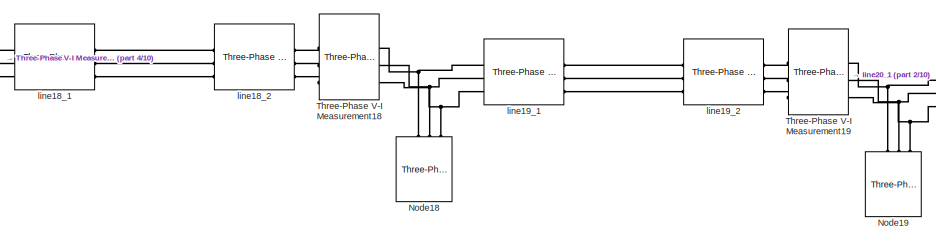
[diagram: root canvas - part 1/10, top left region]
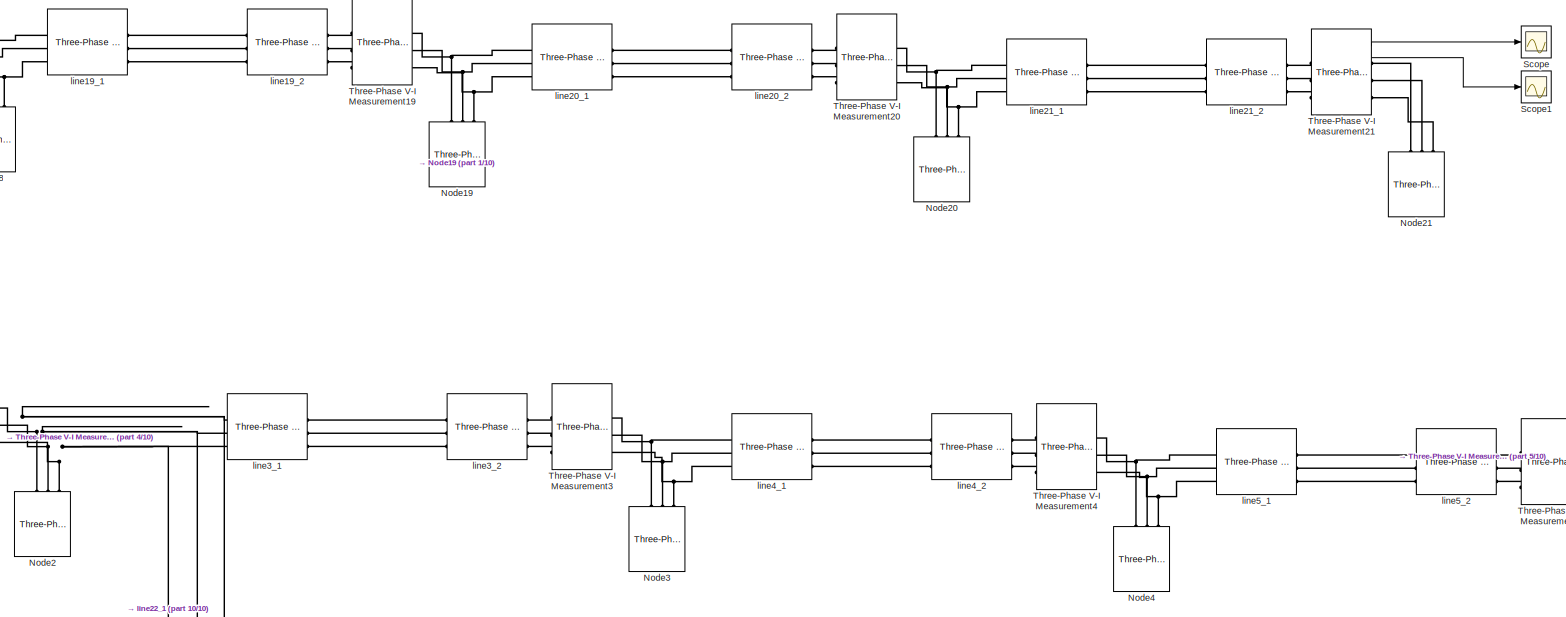
[diagram: root canvas - part 2/10, top left region]
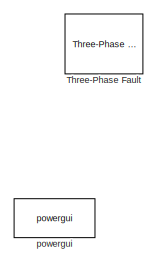
[diagram: root canvas - part 3/10, top left region]
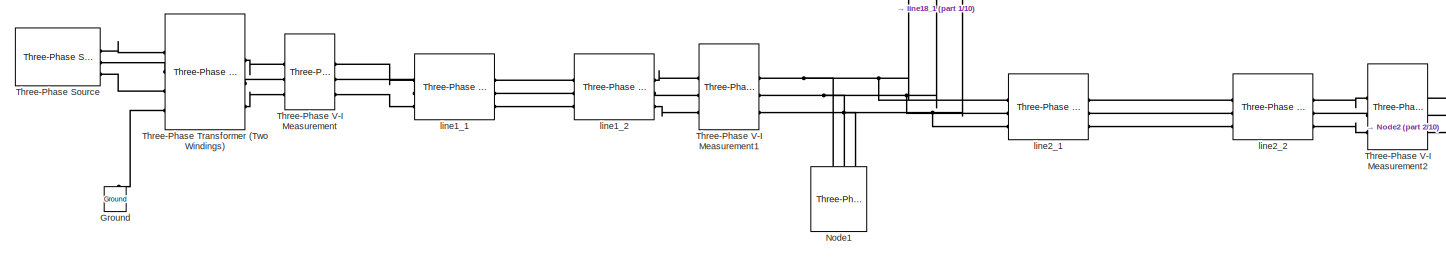
[diagram: root canvas - part 4/10, middle left region]
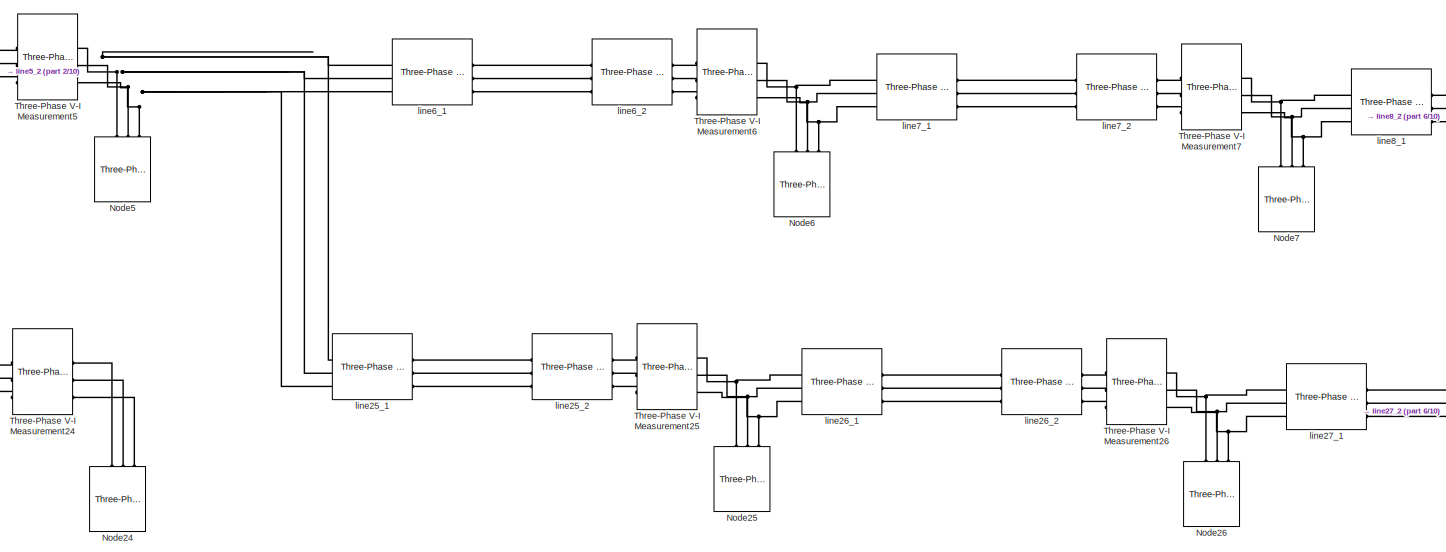
[diagram: root canvas - part 5/10, central region]
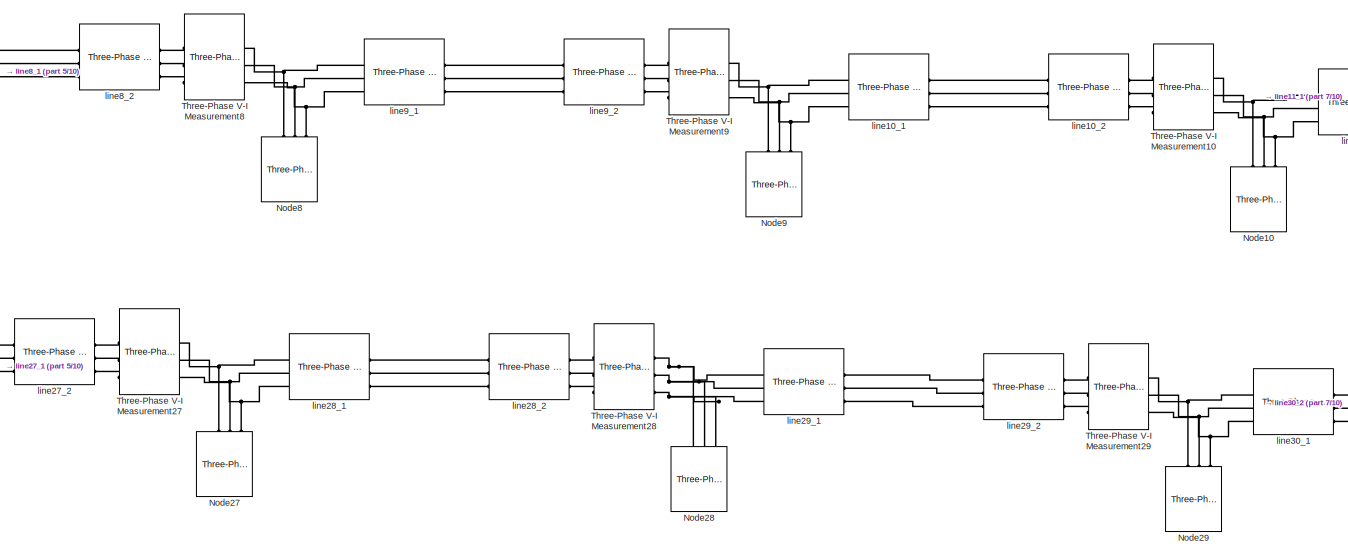
[diagram: root canvas - part 6/10, bottom center region]
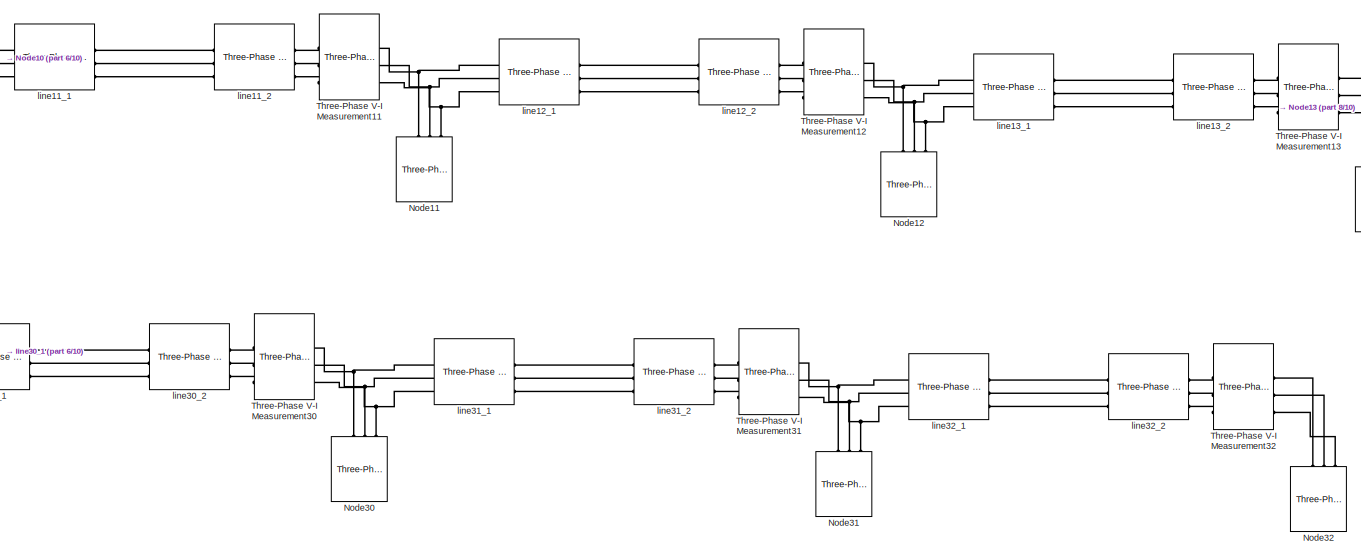
[diagram: root canvas - part 7/10, bottom right region]
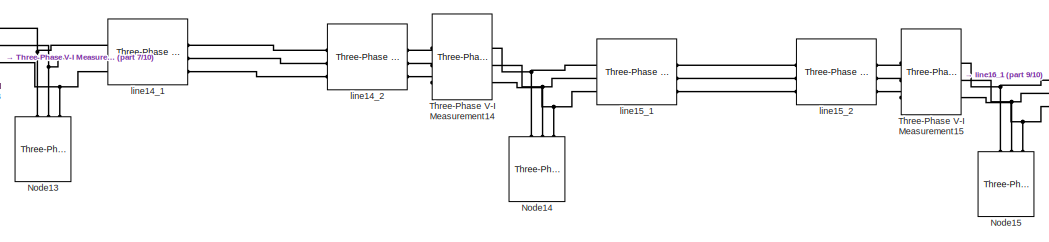
[diagram: root canvas - part 8/10, middle right region]
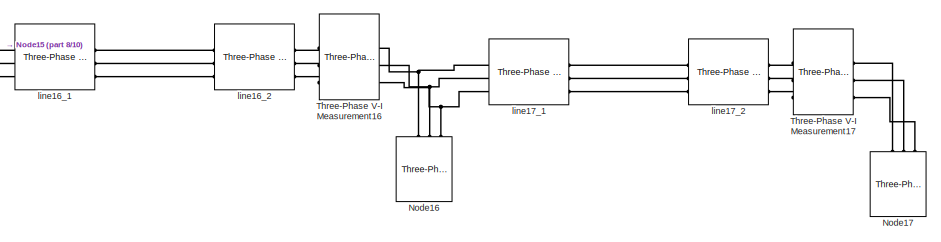
[diagram: root canvas - part 9/10, bottom right region]
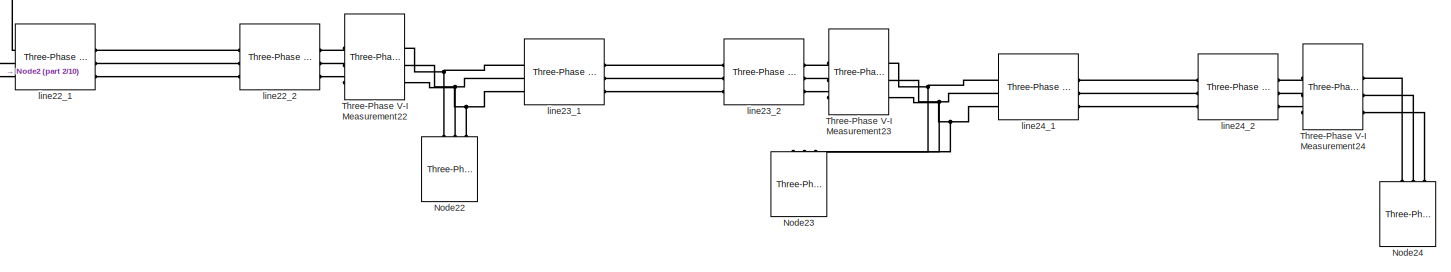
[diagram: root canvas - part 10/10, bottom left region]
MODEL slx_a743ca251527
KIND model
CONFIG AbsTol = auto
CONFIG EnableMultiTasking = off
CONFIG FixedStep = auto
CONFIG MaxStep = auto
CONFIG MinStep = auto
CONFIG RelTol = 1e-3
CONFIG SampleTimeConstraint = Unconstrained
CONFIG SolverName = VariableStepAuto
CONFIG StartTime = 0.0
CONFIG StopTime = 0.04
BLOCK [Reference] Ground  REF=spsGroundLib/Ground
  LibrarySourceBlock = sps_lib/Utilities/Ground
  NameLocation = right
  SourceBlock = spsGroundLib/Ground
  SourceType = Ground
BLOCK [Reference] Node1  REF=spsThreePhaseSeriesRLCLoadLib/Three-Phase
Series RLC Load
  AttributesFormatString = \n
  LibrarySourceBlock = sps_lib/Passives/Three-Phase\nSeries RLC Load
  SourceBlock = spsThreePhaseSeriesRLCLoadLib/Three-Phase\nSeries RLC Load
  SourceType = Three-Phase Series RLC Load
BLOCK [Reference] Node10  REF=spsThreePhaseSeriesRLCLoadLib/Three-Phase
Series RLC Load
  AttributesFormatString = \n
  LibrarySourceBlock = sps_lib/Passives/Three-Phase\nSeries RLC Load
  SourceBlock = spsThreePhaseSeriesRLCLoadLib/Three-Phase\nSeries RLC Load
  SourceType = Three-Phase Series RLC Load
BLOCK [Reference] Node11  REF=spsThreePhaseSeriesRLCLoadLib/Three-Phase
Series RLC Load
  AttributesFormatString = \n
  LibrarySourceBlock = sps_lib/Passives/Three-Phase\nSeries RLC Load
  SourceBlock = spsThreePhaseSeriesRLCLoadLib/Three-Phase\nSeries RLC Load
  SourceType = Three-Phase Series RLC Load
BLOCK [Reference] Node12  REF=spsThreePhaseSeriesRLCLoadLib/Three-Phase
Series RLC Load
  AttributesFormatString = \n
  LibrarySourceBlock = sps_lib/Passives/Three-Phase\nSeries RLC Load
  SourceBlock = spsThreePhaseSeriesRLCLoadLib/Three-Phase\nSeries RLC Load
  SourceType = Three-Phase Series RLC Load
BLOCK [Reference] Node13  REF=spsThreePhaseSeriesRLCLoadLib/Three-Phase
Series RLC Load
  AttributesFormatString = \n
  LibrarySourceBlock = sps_lib/Passives/Three-Phase\nSeries RLC Load
  SourceBlock = spsThreePhaseSeriesRLCLoadLib/Three-Phase\nSeries RLC Load
  SourceType = Three-Phase Series RLC Load
BLOCK [Reference] Node14  REF=spsThreePhaseSeriesRLCLoadLib/Three-Phase
Series RLC Load
  AttributesFormatString = \n
  LibrarySourceBlock = sps_lib/Passives/Three-Phase\nSeries RLC Load
  SourceBlock = spsThreePhaseSeriesRLCLoadLib/Three-Phase\nSeries RLC Load
  SourceType = Three-Phase Series RLC Load
BLOCK [Reference] Node15  REF=spsThreePhaseSeriesRLCLoadLib/Three-Phase
Series RLC Load
  AttributesFormatString = \n
  LibrarySourceBlock = sps_lib/Passives/Three-Phase\nSeries RLC Load
  SourceBlock = spsThreePhaseSeriesRLCLoadLib/Three-Phase\nSeries RLC Load
  SourceType = Three-Phase Series RLC Load
BLOCK [Reference] Node16  REF=spsThreePhaseSeriesRLCLoadLib/Three-Phase
Series RLC Load
  AttributesFormatString = \n
  LibrarySourceBlock = sps_lib/Passives/Three-Phase\nSeries RLC Load
  SourceBlock = spsThreePhaseSeriesRLCLoadLib/Three-Phase\nSeries RLC Load
  SourceType = Three-Phase Series RLC Load
BLOCK [Reference] Node17  REF=spsThreePhaseSeriesRLCLoadLib/Three-Phase
Series RLC Load
  AttributesFormatString = \n
  LibrarySourceBlock = sps_lib/Passives/Three-Phase\nSeries RLC Load
  SourceBlock = spsThreePhaseSeriesRLCLoadLib/Three-Phase\nSeries RLC Load
  SourceType = Three-Phase Series RLC Load
BLOCK [Reference] Node18  REF=spsThreePhaseSeriesRLCLoadLib/Three-Phase
Series RLC Load
  AttributesFormatString = \n
  LibrarySourceBlock = sps_lib/Passives/Three-Phase\nSeries RLC Load
  SourceBlock = spsThreePhaseSeriesRLCLoadLib/Three-Phase\nSeries RLC Load
  SourceType = Three-Phase Series RLC Load
BLOCK [Reference] Node19  REF=spsThreePhaseSeriesRLCLoadLib/Three-Phase
Series RLC Load
  AttributesFormatString = \n
  LibrarySourceBlock = sps_lib/Passives/Three-Phase\nSeries RLC Load
  SourceBlock = spsThreePhaseSeriesRLCLoadLib/Three-Phase\nSeries RLC Load
  SourceType = Three-Phase Series RLC Load
BLOCK [Reference] Node2  REF=spsThreePhaseSeriesRLCLoadLib/Three-Phase
Series RLC Load
  AttributesFormatString = \n
  LibrarySourceBlock = sps_lib/Passives/Three-Phase\nSeries RLC Load
  SourceBlock = spsThreePhaseSeriesRLCLoadLib/Three-Phase\nSeries RLC Load
  SourceType = Three-Phase Series RLC Load
BLOCK [Reference] Node20  REF=spsThreePhaseSeriesRLCLoadLib/Three-Phase
Series RLC Load
  AttributesFormatString = \n
  LibrarySourceBlock = sps_lib/Passives/Three-Phase\nSeries RLC Load
  SourceBlock = spsThreePhaseSeriesRLCLoadLib/Three-Phase\nSeries RLC Load
  SourceType = Three-Phase Series RLC Load
BLOCK [Reference] Node21  REF=spsThreePhaseSeriesRLCLoadLib/Three-Phase
Series RLC Load
  AttributesFormatString = \n
  LibrarySourceBlock = sps_lib/Passives/Three-Phase\nSeries RLC Load
  SourceBlock = spsThreePhaseSeriesRLCLoadLib/Three-Phase\nSeries RLC Load
  SourceType = Three-Phase Series RLC Load
BLOCK [Reference] Node22  REF=spsThreePhaseSeriesRLCLoadLib/Three-Phase
Series RLC Load
  AttributesFormatString = \n
  LibrarySourceBlock = sps_lib/Passives/Three-Phase\nSeries RLC Load
  SourceBlock = spsThreePhaseSeriesRLCLoadLib/Three-Phase\nSeries RLC Load
  SourceType = Three-Phase Series RLC Load
BLOCK [Reference] Node23  REF=spsThreePhaseSeriesRLCLoadLib/Three-Phase
Series RLC Load
  AttributesFormatString = \n
  LibrarySourceBlock = sps_lib/Passives/Three-Phase\nSeries RLC Load
  SourceBlock = spsThreePhaseSeriesRLCLoadLib/Three-Phase\nSeries RLC Load
  SourceType = Three-Phase Series RLC Load
BLOCK [Reference] Node24  REF=spsThreePhaseSeriesRLCLoadLib/Three-Phase
Series RLC Load
  AttributesFormatString = \n
  LibrarySourceBlock = sps_lib/Passives/Three-Phase\nSeries RLC Load
  SourceBlock = spsThreePhaseSeriesRLCLoadLib/Three-Phase\nSeries RLC Load
  SourceType = Three-Phase Series RLC Load
BLOCK [Reference] Node25  REF=spsThreePhaseSeriesRLCLoadLib/Three-Phase
Series RLC Load
  AttributesFormatString = \n
  LibrarySourceBlock = sps_lib/Passives/Three-Phase\nSeries RLC Load
  SourceBlock = spsThreePhaseSeriesRLCLoadLib/Three-Phase\nSeries RLC Load
  SourceType = Three-Phase Series RLC Load
BLOCK [Reference] Node26  REF=spsThreePhaseSeriesRLCLoadLib/Three-Phase
Series RLC Load
  AttributesFormatString = \n
  LibrarySourceBlock = sps_lib/Passives/Three-Phase\nSeries RLC Load
  SourceBlock = spsThreePhaseSeriesRLCLoadLib/Three-Phase\nSeries RLC Load
  SourceType = Three-Phase Series RLC Load
BLOCK [Reference] Node27  REF=spsThreePhaseSeriesRLCLoadLib/Three-Phase
Series RLC Load
  AttributesFormatString = \n
  LibrarySourceBlock = sps_lib/Passives/Three-Phase\nSeries RLC Load
  SourceBlock = spsThreePhaseSeriesRLCLoadLib/Three-Phase\nSeries RLC Load
  SourceType = Three-Phase Series RLC Load
BLOCK [Reference] Node28  REF=spsThreePhaseSeriesRLCLoadLib/Three-Phase
Series RLC Load
  AttributesFormatString = \n
  LibrarySourceBlock = sps_lib/Passives/Three-Phase\nSeries RLC Load
  SourceBlock = spsThreePhaseSeriesRLCLoadLib/Three-Phase\nSeries RLC Load
  SourceType = Three-Phase Series RLC Load
BLOCK [Reference] Node29  REF=spsThreePhaseSeriesRLCLoadLib/Three-Phase
Series RLC Load
  AttributesFormatString = \n
  LibrarySourceBlock = sps_lib/Passives/Three-Phase\nSeries RLC Load
  SourceBlock = spsThreePhaseSeriesRLCLoadLib/Three-Phase\nSeries RLC Load
  SourceType = Three-Phase Series RLC Load
BLOCK [Reference] Node3  REF=spsThreePhaseSeriesRLCLoadLib/Three-Phase
Series RLC Load
  AttributesFormatString = \n
  LibrarySourceBlock = sps_lib/Passives/Three-Phase\nSeries RLC Load
  SourceBlock = spsThreePhaseSeriesRLCLoadLib/Three-Phase\nSeries RLC Load
  SourceType = Three-Phase Series RLC Load
BLOCK [Reference] Node30  REF=spsThreePhaseSeriesRLCLoadLib/Three-Phase
Series RLC Load
  AttributesFormatString = \n
  LibrarySourceBlock = sps_lib/Passives/Three-Phase\nSeries RLC Load
  SourceBlock = spsThreePhaseSeriesRLCLoadLib/Three-Phase\nSeries RLC Load
  SourceType = Three-Phase Series RLC Load
BLOCK [Reference] Node31  REF=spsThreePhaseSeriesRLCLoadLib/Three-Phase
Series RLC Load
  AttributesFormatString = \n
  LibrarySourceBlock = sps_lib/Passives/Three-Phase\nSeries RLC Load
  SourceBlock = spsThreePhaseSeriesRLCLoadLib/Three-Phase\nSeries RLC Load
  SourceType = Three-Phase Series RLC Load
BLOCK [Reference] Node32  REF=spsThreePhaseSeriesRLCLoadLib/Three-Phase
Series RLC Load
  AttributesFormatString = \n
  LibrarySourceBlock = sps_lib/Passives/Three-Phase\nSeries RLC Load
  SourceBlock = spsThreePhaseSeriesRLCLoadLib/Three-Phase\nSeries RLC Load
  SourceType = Three-Phase Series RLC Load
BLOCK [Reference] Node4  REF=spsThreePhaseSeriesRLCLoadLib/Three-Phase
Series RLC Load
  AttributesFormatString = \n
  LibrarySourceBlock = sps_lib/Passives/Three-Phase\nSeries RLC Load
  SourceBlock = spsThreePhaseSeriesRLCLoadLib/Three-Phase\nSeries RLC Load
  SourceType = Three-Phase Series RLC Load
BLOCK [Reference] Node5  REF=spsThreePhaseSeriesRLCLoadLib/Three-Phase
Series RLC Load
  AttributesFormatString = \n
  LibrarySourceBlock = sps_lib/Passives/Three-Phase\nSeries RLC Load
  SourceBlock = spsThreePhaseSeriesRLCLoadLib/Three-Phase\nSeries RLC Load
  SourceType = Three-Phase Series RLC Load
BLOCK [Reference] Node6  REF=spsThreePhaseSeriesRLCLoadLib/Three-Phase
Series RLC Load
  AttributesFormatString = \n
  LibrarySourceBlock = sps_lib/Passives/Three-Phase\nSeries RLC Load
  SourceBlock = spsThreePhaseSeriesRLCLoadLib/Three-Phase\nSeries RLC Load
  SourceType = Three-Phase Series RLC Load
BLOCK [Reference] Node7  REF=spsThreePhaseSeriesRLCLoadLib/Three-Phase
Series RLC Load
  AttributesFormatString = \n
  LibrarySourceBlock = sps_lib/Passives/Three-Phase\nSeries RLC Load
  SourceBlock = spsThreePhaseSeriesRLCLoadLib/Three-Phase\nSeries RLC Load
  SourceType = Three-Phase Series RLC Load
BLOCK [Reference] Node8  REF=spsThreePhaseSeriesRLCLoadLib/Three-Phase
Series RLC Load
  AttributesFormatString = \n
  LibrarySourceBlock = sps_lib/Passives/Three-Phase\nSeries RLC Load
  SourceBlock = spsThreePhaseSeriesRLCLoadLib/Three-Phase\nSeries RLC Load
  SourceType = Three-Phase Series RLC Load
BLOCK [Reference] Node9  REF=spsThreePhaseSeriesRLCLoadLib/Three-Phase
Series RLC Load
  AttributesFormatString = \n
  LibrarySourceBlock = sps_lib/Passives/Three-Phase\nSeries RLC Load
  SourceBlock = spsThreePhaseSeriesRLCLoadLib/Three-Phase\nSeries RLC Load
  SourceType = Three-Phase Series RLC Load
BLOCK [Scope] Scope
  Floating = off
  NumInputPorts = 1
  ScopeSpecificationString = Simulink.scopes.TimeScopeBlockCfg('CurrentConfiguration', extmgr.ConfigurationSet(extmgr.Configuration('Core','General UI',true),extmgr.Configuration('Core','Source UI',true),extmgr.Configuration('Sources','WiredSimulink',true),extmgr.Configuration('Visuals','Time Domain',true,'SerializedDisplays',{struct('MinYLimReal','-9272.10857','MaxYLimReal','9272.10856','YLabelReal','','MinYLimMag','  0.0000...<+1551ch>
BLOCK [Scope] Scope1
  Floating = off
  NumInputPorts = 1
  ScopeSpecificationString = Simulink.scopes.TimeScopeBlockCfg('CurrentConfiguration', extmgr.ConfigurationSet(extmgr.Configuration('Core','General UI',true),extmgr.Configuration('Core','Source UI',true),extmgr.Configuration('Sources','WiredSimulink',true,'DataLoggingVariableName','ScopeData1'),extmgr.Configuration('Visuals','Time Domain',true,'SerializedDisplays',{struct('MinYLimReal','-132.71123','MaxYLimReal','132.71123','...<+1582ch>
BLOCK [Reference] Three-Phase Fault  REF=spsThreePhaseFaultLib/Three-Phase Fault
  LibrarySourceBlock = sps_lib/Power Grid Elements/Three-Phase Fault
  NameLocation = left
  SourceBlock = spsThreePhaseFaultLib/Three-Phase Fault
  SourceType = Three-Phase Fault
BLOCK [Reference] Three-Phase Source  REF=spsThreePhaseSourceLib/Three-Phase Source
  LibrarySourceBlock = sps_lib/Sources/Three-Phase Source
  SourceBlock = spsThreePhaseSourceLib/Three-Phase Source
  SourceType = Three-Phase Source
BLOCK [Reference] Three-Phase Transformer (Two Windings)  REF=spsThreePhaseTransformerTwoWindingsLib/Three-Phase
Transformer
(Two Windings)
  LibrarySourceBlock = sps_lib/Power Grid Elements/Three-Phase\nTransformer\n(Two Windings)
  SourceBlock = spsThreePhaseTransformerTwoWindingsLib/Three-Phase\nTransformer\n(Two Windings)
  SourceType = Three-Phase Transformer (Two Windings)
BLOCK [Reference] Three-Phase V-I Measurement  REF=spsThreePhaseVIMeasurementLib/Three-Phase
V-I Measurement
  LibrarySourceBlock = sps_lib/Sensors and Measurements/Three-Phase\nV-I Measurement
  SourceBlock = spsThreePhaseVIMeasurementLib/Three-Phase\nV-I Measurement
  SourceType = Three-Phase VI Measurement
BLOCK [Reference] Three-Phase V-I Measurement1  REF=spsThreePhaseVIMeasurementLib/Three-Phase
V-I Measurement
  LibrarySourceBlock = sps_lib/Sensors and Measurements/Three-Phase\nV-I Measurement
  SourceBlock = spsThreePhaseVIMeasurementLib/Three-Phase\nV-I Measurement
  SourceType = Three-Phase VI Measurement
BLOCK [Reference] Three-Phase V-I Measurement10  REF=spsThreePhaseVIMeasurementLib/Three-Phase
V-I Measurement
  LibrarySourceBlock = sps_lib/Sensors and Measurements/Three-Phase\nV-I Measurement
  SourceBlock = spsThreePhaseVIMeasurementLib/Three-Phase\nV-I Measurement
  SourceType = Three-Phase VI Measurement
BLOCK [Reference] Three-Phase V-I Measurement11  REF=spsThreePhaseVIMeasurementLib/Three-Phase
V-I Measurement
  LibrarySourceBlock = sps_lib/Sensors and Measurements/Three-Phase\nV-I Measurement
  SourceBlock = spsThreePhaseVIMeasurementLib/Three-Phase\nV-I Measurement
  SourceType = Three-Phase VI Measurement
BLOCK [Reference] Three-Phase V-I Measurement12  REF=spsThreePhaseVIMeasurementLib/Three-Phase
V-I Measurement
  LibrarySourceBlock = sps_lib/Sensors and Measurements/Three-Phase\nV-I Measurement
  SourceBlock = spsThreePhaseVIMeasurementLib/Three-Phase\nV-I Measurement
  SourceType = Three-Phase VI Measurement
BLOCK [Reference] Three-Phase V-I Measurement13  REF=spsThreePhaseVIMeasurementLib/Three-Phase
V-I Measurement
  LibrarySourceBlock = sps_lib/Sensors and Measurements/Three-Phase\nV-I Measurement
  SourceBlock = spsThreePhaseVIMeasurementLib/Three-Phase\nV-I Measurement
  SourceType = Three-Phase VI Measurement
BLOCK [Reference] Three-Phase V-I Measurement14  REF=spsThreePhaseVIMeasurementLib/Three-Phase
V-I Measurement
  LibrarySourceBlock = sps_lib/Sensors and Measurements/Three-Phase\nV-I Measurement
  SourceBlock = spsThreePhaseVIMeasurementLib/Three-Phase\nV-I Measurement
  SourceType = Three-Phase VI Measurement
BLOCK [Reference] Three-Phase V-I Measurement15  REF=spsThreePhaseVIMeasurementLib/Three-Phase
V-I Measurement
  LibrarySourceBlock = sps_lib/Sensors and Measurements/Three-Phase\nV-I Measurement
  SourceBlock = spsThreePhaseVIMeasurementLib/Three-Phase\nV-I Measurement
  SourceType = Three-Phase VI Measurement
BLOCK [Reference] Three-Phase V-I Measurement16  REF=spsThreePhaseVIMeasurementLib/Three-Phase
V-I Measurement
  LibrarySourceBlock = sps_lib/Sensors and Measurements/Three-Phase\nV-I Measurement
  SourceBlock = spsThreePhaseVIMeasurementLib/Three-Phase\nV-I Measurement
  SourceType = Three-Phase VI Measurement
BLOCK [Reference] Three-Phase V-I Measurement17  REF=spsThreePhaseVIMeasurementLib/Three-Phase
V-I Measurement
  LibrarySourceBlock = sps_lib/Sensors and Measurements/Three-Phase\nV-I Measurement
  SourceBlock = spsThreePhaseVIMeasurementLib/Three-Phase\nV-I Measurement
  SourceType = Three-Phase VI Measurement
BLOCK [Reference] Three-Phase V-I Measurement18  REF=spsThreePhaseVIMeasurementLib/Three-Phase
V-I Measurement
  LibrarySourceBlock = sps_lib/Sensors and Measurements/Three-Phase\nV-I Measurement
  SourceBlock = spsThreePhaseVIMeasurementLib/Three-Phase\nV-I Measurement
  SourceType = Three-Phase VI Measurement
BLOCK [Reference] Three-Phase V-I Measurement19  REF=spsThreePhaseVIMeasurementLib/Three-Phase
V-I Measurement
  LibrarySourceBlock = sps_lib/Sensors and Measurements/Three-Phase\nV-I Measurement
  SourceBlock = spsThreePhaseVIMeasurementLib/Three-Phase\nV-I Measurement
  SourceType = Three-Phase VI Measurement
BLOCK [Reference] Three-Phase V-I Measurement2  REF=spsThreePhaseVIMeasurementLib/Three-Phase
V-I Measurement
  LibrarySourceBlock = sps_lib/Sensors and Measurements/Three-Phase\nV-I Measurement
  SourceBlock = spsThreePhaseVIMeasurementLib/Three-Phase\nV-I Measurement
  SourceType = Three-Phase VI Measurement
BLOCK [Reference] Three-Phase V-I Measurement20  REF=spsThreePhaseVIMeasurementLib/Three-Phase
V-I Measurement
  LibrarySourceBlock = sps_lib/Sensors and Measurements/Three-Phase\nV-I Measurement
  SourceBlock = spsThreePhaseVIMeasurementLib/Three-Phase\nV-I Measurement
  SourceType = Three-Phase VI Measurement
BLOCK [Reference] Three-Phase V-I Measurement21  REF=spsThreePhaseVIMeasurementLib/Three-Phase
V-I Measurement
  LibrarySourceBlock = sps_lib/Sensors and Measurements/Three-Phase\nV-I Measurement
  SourceBlock = spsThreePhaseVIMeasurementLib/Three-Phase\nV-I Measurement
  SourceType = Three-Phase VI Measurement
BLOCK [Reference] Three-Phase V-I Measurement22  REF=spsThreePhaseVIMeasurementLib/Three-Phase
V-I Measurement
  LibrarySourceBlock = sps_lib/Sensors and Measurements/Three-Phase\nV-I Measurement
  SourceBlock = spsThreePhaseVIMeasurementLib/Three-Phase\nV-I Measurement
  SourceType = Three-Phase VI Measurement
BLOCK [Reference] Three-Phase V-I Measurement23  REF=spsThreePhaseVIMeasurementLib/Three-Phase
V-I Measurement
  LibrarySourceBlock = sps_lib/Sensors and Measurements/Three-Phase\nV-I Measurement
  SourceBlock = spsThreePhaseVIMeasurementLib/Three-Phase\nV-I Measurement
  SourceType = Three-Phase VI Measurement
BLOCK [Reference] Three-Phase V-I Measurement24  REF=spsThreePhaseVIMeasurementLib/Three-Phase
V-I Measurement
  LibrarySourceBlock = sps_lib/Sensors and Measurements/Three-Phase\nV-I Measurement
  SourceBlock = spsThreePhaseVIMeasurementLib/Three-Phase\nV-I Measurement
  SourceType = Three-Phase VI Measurement
BLOCK [Reference] Three-Phase V-I Measurement25  REF=spsThreePhaseVIMeasurementLib/Three-Phase
V-I Measurement
  LibrarySourceBlock = sps_lib/Sensors and Measurements/Three-Phase\nV-I Measurement
  SourceBlock = spsThreePhaseVIMeasurementLib/Three-Phase\nV-I Measurement
  SourceType = Three-Phase VI Measurement
BLOCK [Reference] Three-Phase V-I Measurement26  REF=spsThreePhaseVIMeasurementLib/Three-Phase
V-I Measurement
  LibrarySourceBlock = sps_lib/Sensors and Measurements/Three-Phase\nV-I Measurement
  SourceBlock = spsThreePhaseVIMeasurementLib/Three-Phase\nV-I Measurement
  SourceType = Three-Phase VI Measurement
BLOCK [Reference] Three-Phase V-I Measurement27  REF=spsThreePhaseVIMeasurementLib/Three-Phase
V-I Measurement
  LibrarySourceBlock = sps_lib/Sensors and Measurements/Three-Phase\nV-I Measurement
  SourceBlock = spsThreePhaseVIMeasurementLib/Three-Phase\nV-I Measurement
  SourceType = Three-Phase VI Measurement
BLOCK [Reference] Three-Phase V-I Measurement28  REF=spsThreePhaseVIMeasurementLib/Three-Phase
V-I Measurement
  LibrarySourceBlock = sps_lib/Sensors and Measurements/Three-Phase\nV-I Measurement
  SourceBlock = spsThreePhaseVIMeasurementLib/Three-Phase\nV-I Measurement
  SourceType = Three-Phase VI Measurement
BLOCK [Reference] Three-Phase V-I Measurement29  REF=spsThreePhaseVIMeasurementLib/Three-Phase
V-I Measurement
  LibrarySourceBlock = sps_lib/Sensors and Measurements/Three-Phase\nV-I Measurement
  SourceBlock = spsThreePhaseVIMeasurementLib/Three-Phase\nV-I Measurement
  SourceType = Three-Phase VI Measurement
BLOCK [Reference] Three-Phase V-I Measurement3  REF=spsThreePhaseVIMeasurementLib/Three-Phase
V-I Measurement
  LibrarySourceBlock = sps_lib/Sensors and Measurements/Three-Phase\nV-I Measurement
  SourceBlock = spsThreePhaseVIMeasurementLib/Three-Phase\nV-I Measurement
  SourceType = Three-Phase VI Measurement
BLOCK [Reference] Three-Phase V-I Measurement30  REF=spsThreePhaseVIMeasurementLib/Three-Phase
V-I Measurement
  LibrarySourceBlock = sps_lib/Sensors and Measurements/Three-Phase\nV-I Measurement
  SourceBlock = spsThreePhaseVIMeasurementLib/Three-Phase\nV-I Measurement
  SourceType = Three-Phase VI Measurement
BLOCK [Reference] Three-Phase V-I Measurement31  REF=spsThreePhaseVIMeasurementLib/Three-Phase
V-I Measurement
  LibrarySourceBlock = sps_lib/Sensors and Measurements/Three-Phase\nV-I Measurement
  SourceBlock = spsThreePhaseVIMeasurementLib/Three-Phase\nV-I Measurement
  SourceType = Three-Phase VI Measurement
BLOCK [Reference] Three-Phase V-I Measurement32  REF=spsThreePhaseVIMeasurementLib/Three-Phase
V-I Measurement
  LibrarySourceBlock = sps_lib/Sensors and Measurements/Three-Phase\nV-I Measurement
  SourceBlock = spsThreePhaseVIMeasurementLib/Three-Phase\nV-I Measurement
  SourceType = Three-Phase VI Measurement
BLOCK [Reference] Three-Phase V-I Measurement4  REF=spsThreePhaseVIMeasurementLib/Three-Phase
V-I Measurement
  LibrarySourceBlock = sps_lib/Sensors and Measurements/Three-Phase\nV-I Measurement
  SourceBlock = spsThreePhaseVIMeasurementLib/Three-Phase\nV-I Measurement
  SourceType = Three-Phase VI Measurement
BLOCK [Reference] Three-Phase V-I Measurement5  REF=spsThreePhaseVIMeasurementLib/Three-Phase
V-I Measurement
  LibrarySourceBlock = sps_lib/Sensors and Measurements/Three-Phase\nV-I Measurement
  SourceBlock = spsThreePhaseVIMeasurementLib/Three-Phase\nV-I Measurement
  SourceType = Three-Phase VI Measurement
BLOCK [Reference] Three-Phase V-I Measurement6  REF=spsThreePhaseVIMeasurementLib/Three-Phase
V-I Measurement
  LibrarySourceBlock = sps_lib/Sensors and Measurements/Three-Phase\nV-I Measurement
  SourceBlock = spsThreePhaseVIMeasurementLib/Three-Phase\nV-I Measurement
  SourceType = Three-Phase VI Measurement
BLOCK [Reference] Three-Phase V-I Measurement7  REF=spsThreePhaseVIMeasurementLib/Three-Phase
V-I Measurement
  LibrarySourceBlock = sps_lib/Sensors and Measurements/Three-Phase\nV-I Measurement
  SourceBlock = spsThreePhaseVIMeasurementLib/Three-Phase\nV-I Measurement
  SourceType = Three-Phase VI Measurement
BLOCK [Reference] Three-Phase V-I Measurement8  REF=spsThreePhaseVIMeasurementLib/Three-Phase
V-I Measurement
  LibrarySourceBlock = sps_lib/Sensors and Measurements/Three-Phase\nV-I Measurement
  SourceBlock = spsThreePhaseVIMeasurementLib/Three-Phase\nV-I Measurement
  SourceType = Three-Phase VI Measurement
BLOCK [Reference] Three-Phase V-I Measurement9  REF=spsThreePhaseVIMeasurementLib/Three-Phase
V-I Measurement
  LibrarySourceBlock = sps_lib/Sensors and Measurements/Three-Phase\nV-I Measurement
  SourceBlock = spsThreePhaseVIMeasurementLib/Three-Phase\nV-I Measurement
  SourceType = Three-Phase VI Measurement
BLOCK [Reference] line10_1  REF=spsThreePhasePISectionLineLib/Three-Phase
PI Section Line
  AttributesFormatString = \n
  LibrarySourceBlock = sps_lib/Power Grid Elements/Three-Phase\nPI Section Line
  SourceBlock = spsThreePhasePISectionLineLib/Three-Phase\nPI Section Line
  SourceType = Three-Phase PI Section Line
BLOCK [Reference] line10_2  REF=spsThreePhasePISectionLineLib/Three-Phase
PI Section Line
  AttributesFormatString = \n
  LibrarySourceBlock = sps_lib/Power Grid Elements/Three-Phase\nPI Section Line
  SourceBlock = spsThreePhasePISectionLineLib/Three-Phase\nPI Section Line
  SourceType = Three-Phase PI Section Line
BLOCK [Reference] line11_1  REF=spsThreePhasePISectionLineLib/Three-Phase
PI Section Line
  AttributesFormatString = \n
  LibrarySourceBlock = sps_lib/Power Grid Elements/Three-Phase\nPI Section Line
  SourceBlock = spsThreePhasePISectionLineLib/Three-Phase\nPI Section Line
  SourceType = Three-Phase PI Section Line
BLOCK [Reference] line11_2  REF=spsThreePhasePISectionLineLib/Three-Phase
PI Section Line
  AttributesFormatString = \n
  LibrarySourceBlock = sps_lib/Power Grid Elements/Three-Phase\nPI Section Line
  SourceBlock = spsThreePhasePISectionLineLib/Three-Phase\nPI Section Line
  SourceType = Three-Phase PI Section Line
BLOCK [Reference] line12_1  REF=spsThreePhasePISectionLineLib/Three-Phase
PI Section Line
  AttributesFormatString = \n
  LibrarySourceBlock = sps_lib/Power Grid Elements/Three-Phase\nPI Section Line
  SourceBlock = spsThreePhasePISectionLineLib/Three-Phase\nPI Section Line
  SourceType = Three-Phase PI Section Line
BLOCK [Reference] line12_2  REF=spsThreePhasePISectionLineLib/Three-Phase
PI Section Line
  AttributesFormatString = \n
  LibrarySourceBlock = sps_lib/Power Grid Elements/Three-Phase\nPI Section Line
  SourceBlock = spsThreePhasePISectionLineLib/Three-Phase\nPI Section Line
  SourceType = Three-Phase PI Section Line
BLOCK [Reference] line13_1  REF=spsThreePhasePISectionLineLib/Three-Phase
PI Section Line
  AttributesFormatString = \n
  LibrarySourceBlock = sps_lib/Power Grid Elements/Three-Phase\nPI Section Line
  SourceBlock = spsThreePhasePISectionLineLib/Three-Phase\nPI Section Line
  SourceType = Three-Phase PI Section Line
BLOCK [Reference] line13_2  REF=spsThreePhasePISectionLineLib/Three-Phase
PI Section Line
  AttributesFormatString = \n
  LibrarySourceBlock = sps_lib/Power Grid Elements/Three-Phase\nPI Section Line
  SourceBlock = spsThreePhasePISectionLineLib/Three-Phase\nPI Section Line
  SourceType = Three-Phase PI Section Line
BLOCK [Reference] line14_1  REF=spsThreePhasePISectionLineLib/Three-Phase
PI Section Line
  AttributesFormatString = \n
  LibrarySourceBlock = sps_lib/Power Grid Elements/Three-Phase\nPI Section Line
  SourceBlock = spsThreePhasePISectionLineLib/Three-Phase\nPI Section Line
  SourceType = Three-Phase PI Section Line
BLOCK [Reference] line14_2  REF=spsThreePhasePISectionLineLib/Three-Phase
PI Section Line
  AttributesFormatString = \n
  LibrarySourceBlock = sps_lib/Power Grid Elements/Three-Phase\nPI Section Line
  SourceBlock = spsThreePhasePISectionLineLib/Three-Phase\nPI Section Line
  SourceType = Three-Phase PI Section Line
BLOCK [Reference] line15_1  REF=spsThreePhasePISectionLineLib/Three-Phase
PI Section Line
  AttributesFormatString = \n
  LibrarySourceBlock = sps_lib/Power Grid Elements/Three-Phase\nPI Section Line
  SourceBlock = spsThreePhasePISectionLineLib/Three-Phase\nPI Section Line
  SourceType = Three-Phase PI Section Line
BLOCK [Reference] line15_2  REF=spsThreePhasePISectionLineLib/Three-Phase
PI Section Line
  AttributesFormatString = \n
  LibrarySourceBlock = sps_lib/Power Grid Elements/Three-Phase\nPI Section Line
  SourceBlock = spsThreePhasePISectionLineLib/Three-Phase\nPI Section Line
  SourceType = Three-Phase PI Section Line
BLOCK [Reference] line16_1  REF=spsThreePhasePISectionLineLib/Three-Phase
PI Section Line
  AttributesFormatString = \n
  LibrarySourceBlock = sps_lib/Power Grid Elements/Three-Phase\nPI Section Line
  SourceBlock = spsThreePhasePISectionLineLib/Three-Phase\nPI Section Line
  SourceType = Three-Phase PI Section Line
BLOCK [Reference] line16_2  REF=spsThreePhasePISectionLineLib/Three-Phase
PI Section Line
  AttributesFormatString = \n
  LibrarySourceBlock = sps_lib/Power Grid Elements/Three-Phase\nPI Section Line
  SourceBlock = spsThreePhasePISectionLineLib/Three-Phase\nPI Section Line
  SourceType = Three-Phase PI Section Line
BLOCK [Reference] line17_1  REF=spsThreePhasePISectionLineLib/Three-Phase
PI Section Line
  AttributesFormatString = \n
  LibrarySourceBlock = sps_lib/Power Grid Elements/Three-Phase\nPI Section Line
  SourceBlock = spsThreePhasePISectionLineLib/Three-Phase\nPI Section Line
  SourceType = Three-Phase PI Section Line
BLOCK [Reference] line17_2  REF=spsThreePhasePISectionLineLib/Three-Phase
PI Section Line
  AttributesFormatString = \n
  LibrarySourceBlock = sps_lib/Power Grid Elements/Three-Phase\nPI Section Line
  SourceBlock = spsThreePhasePISectionLineLib/Three-Phase\nPI Section Line
  SourceType = Three-Phase PI Section Line
BLOCK [Reference] line18_1  REF=spsThreePhasePISectionLineLib/Three-Phase
PI Section Line
  AttributesFormatString = \n
  LibrarySourceBlock = sps_lib/Power Grid Elements/Three-Phase\nPI Section Line
  SourceBlock = spsThreePhasePISectionLineLib/Three-Phase\nPI Section Line
  SourceType = Three-Phase PI Section Line
BLOCK [Reference] line18_2  REF=spsThreePhasePISectionLineLib/Three-Phase
PI Section Line
  AttributesFormatString = \n
  LibrarySourceBlock = sps_lib/Power Grid Elements/Three-Phase\nPI Section Line
  SourceBlock = spsThreePhasePISectionLineLib/Three-Phase\nPI Section Line
  SourceType = Three-Phase PI Section Line
BLOCK [Reference] line19_1  REF=spsThreePhasePISectionLineLib/Three-Phase
PI Section Line
  AttributesFormatString = \n
  LibrarySourceBlock = sps_lib/Power Grid Elements/Three-Phase\nPI Section Line
  SourceBlock = spsThreePhasePISectionLineLib/Three-Phase\nPI Section Line
  SourceType = Three-Phase PI Section Line
BLOCK [Reference] line19_2  REF=spsThreePhasePISectionLineLib/Three-Phase
PI Section Line
  AttributesFormatString = \n
  LibrarySourceBlock = sps_lib/Power Grid Elements/Three-Phase\nPI Section Line
  SourceBlock = spsThreePhasePISectionLineLib/Three-Phase\nPI Section Line
  SourceType = Three-Phase PI Section Line
BLOCK [Reference] line1_1  REF=spsThreePhasePISectionLineLib/Three-Phase
PI Section Line
  AttributesFormatString = \n
  LibrarySourceBlock = sps_lib/Power Grid Elements/Three-Phase\nPI Section Line
  SourceBlock = spsThreePhasePISectionLineLib/Three-Phase\nPI Section Line
  SourceType = Three-Phase PI Section Line
BLOCK [Reference] line1_2  REF=spsThreePhasePISectionLineLib/Three-Phase
PI Section Line
  AttributesFormatString = \n
  LibrarySourceBlock = sps_lib/Power Grid Elements/Three-Phase\nPI Section Line
  SourceBlock = spsThreePhasePISectionLineLib/Three-Phase\nPI Section Line
  SourceType = Three-Phase PI Section Line
BLOCK [Reference] line20_1  REF=spsThreePhasePISectionLineLib/Three-Phase
PI Section Line
  AttributesFormatString = \n
  LibrarySourceBlock = sps_lib/Power Grid Elements/Three-Phase\nPI Section Line
  SourceBlock = spsThreePhasePISectionLineLib/Three-Phase\nPI Section Line
  SourceType = Three-Phase PI Section Line
BLOCK [Reference] line20_2  REF=spsThreePhasePISectionLineLib/Three-Phase
PI Section Line
  AttributesFormatString = \n
  LibrarySourceBlock = sps_lib/Power Grid Elements/Three-Phase\nPI Section Line
  SourceBlock = spsThreePhasePISectionLineLib/Three-Phase\nPI Section Line
  SourceType = Three-Phase PI Section Line
BLOCK [Reference] line21_1  REF=spsThreePhasePISectionLineLib/Three-Phase
PI Section Line
  AttributesFormatString = \n
  LibrarySourceBlock = sps_lib/Power Grid Elements/Three-Phase\nPI Section Line
  SourceBlock = spsThreePhasePISectionLineLib/Three-Phase\nPI Section Line
  SourceType = Three-Phase PI Section Line
BLOCK [Reference] line21_2  REF=spsThreePhasePISectionLineLib/Three-Phase
PI Section Line
  AttributesFormatString = \n
  LibrarySourceBlock = sps_lib/Power Grid Elements/Three-Phase\nPI Section Line
  SourceBlock = spsThreePhasePISectionLineLib/Three-Phase\nPI Section Line
  SourceType = Three-Phase PI Section Line
BLOCK [Reference] line22_1  REF=spsThreePhasePISectionLineLib/Three-Phase
PI Section Line
  AttributesFormatString = \n
  LibrarySourceBlock = sps_lib/Power Grid Elements/Three-Phase\nPI Section Line
  SourceBlock = spsThreePhasePISectionLineLib/Three-Phase\nPI Section Line
  SourceType = Three-Phase PI Section Line
BLOCK [Reference] line22_2  REF=spsThreePhasePISectionLineLib/Three-Phase
PI Section Line
  AttributesFormatString = \n
  LibrarySourceBlock = sps_lib/Power Grid Elements/Three-Phase\nPI Section Line
  SourceBlock = spsThreePhasePISectionLineLib/Three-Phase\nPI Section Line
  SourceType = Three-Phase PI Section Line
BLOCK [Reference] line23_1  REF=spsThreePhasePISectionLineLib/Three-Phase
PI Section Line
  AttributesFormatString = \n
  LibrarySourceBlock = sps_lib/Power Grid Elements/Three-Phase\nPI Section Line
  SourceBlock = spsThreePhasePISectionLineLib/Three-Phase\nPI Section Line
  SourceType = Three-Phase PI Section Line
BLOCK [Reference] line23_2  REF=spsThreePhasePISectionLineLib/Three-Phase
PI Section Line
  AttributesFormatString = \n
  LibrarySourceBlock = sps_lib/Power Grid Elements/Three-Phase\nPI Section Line
  SourceBlock = spsThreePhasePISectionLineLib/Three-Phase\nPI Section Line
  SourceType = Three-Phase PI Section Line
BLOCK [Reference] line24_1  REF=spsThreePhasePISectionLineLib/Three-Phase
PI Section Line
  AttributesFormatString = \n
  LibrarySourceBlock = sps_lib/Power Grid Elements/Three-Phase\nPI Section Line
  SourceBlock = spsThreePhasePISectionLineLib/Three-Phase\nPI Section Line
  SourceType = Three-Phase PI Section Line
BLOCK [Reference] line24_2  REF=spsThreePhasePISectionLineLib/Three-Phase
PI Section Line
  AttributesFormatString = \n
  LibrarySourceBlock = sps_lib/Power Grid Elements/Three-Phase\nPI Section Line
  SourceBlock = spsThreePhasePISectionLineLib/Three-Phase\nPI Section Line
  SourceType = Three-Phase PI Section Line
BLOCK [Reference] line25_1  REF=spsThreePhasePISectionLineLib/Three-Phase
PI Section Line
  AttributesFormatString = \n
  LibrarySourceBlock = sps_lib/Power Grid Elements/Three-Phase\nPI Section Line
  SourceBlock = spsThreePhasePISectionLineLib/Three-Phase\nPI Section Line
  SourceType = Three-Phase PI Section Line
BLOCK [Reference] line25_2  REF=spsThreePhasePISectionLineLib/Three-Phase
PI Section Line
  AttributesFormatString = \n
  LibrarySourceBlock = sps_lib/Power Grid Elements/Three-Phase\nPI Section Line
  SourceBlock = spsThreePhasePISectionLineLib/Three-Phase\nPI Section Line
  SourceType = Three-Phase PI Section Line
BLOCK [Reference] line26_1  REF=spsThreePhasePISectionLineLib/Three-Phase
PI Section Line
  AttributesFormatString = \n
  LibrarySourceBlock = sps_lib/Power Grid Elements/Three-Phase\nPI Section Line
  SourceBlock = spsThreePhasePISectionLineLib/Three-Phase\nPI Section Line
  SourceType = Three-Phase PI Section Line
BLOCK [Reference] line26_2  REF=spsThreePhasePISectionLineLib/Three-Phase
PI Section Line
  AttributesFormatString = \n
  LibrarySourceBlock = sps_lib/Power Grid Elements/Three-Phase\nPI Section Line
  SourceBlock = spsThreePhasePISectionLineLib/Three-Phase\nPI Section Line
  SourceType = Three-Phase PI Section Line
BLOCK [Reference] line27_1  REF=spsThreePhasePISectionLineLib/Three-Phase
PI Section Line
  AttributesFormatString = \n
  LibrarySourceBlock = sps_lib/Power Grid Elements/Three-Phase\nPI Section Line
  SourceBlock = spsThreePhasePISectionLineLib/Three-Phase\nPI Section Line
  SourceType = Three-Phase PI Section Line
BLOCK [Reference] line27_2  REF=spsThreePhasePISectionLineLib/Three-Phase
PI Section Line
  AttributesFormatString = \n
  LibrarySourceBlock = sps_lib/Power Grid Elements/Three-Phase\nPI Section Line
  SourceBlock = spsThreePhasePISectionLineLib/Three-Phase\nPI Section Line
  SourceType = Three-Phase PI Section Line
BLOCK [Reference] line28_1  REF=spsThreePhasePISectionLineLib/Three-Phase
PI Section Line
  AttributesFormatString = \n
  LibrarySourceBlock = sps_lib/Power Grid Elements/Three-Phase\nPI Section Line
  SourceBlock = spsThreePhasePISectionLineLib/Three-Phase\nPI Section Line
  SourceType = Three-Phase PI Section Line
BLOCK [Reference] line28_2  REF=spsThreePhasePISectionLineLib/Three-Phase
PI Section Line
  AttributesFormatString = \n
  LibrarySourceBlock = sps_lib/Power Grid Elements/Three-Phase\nPI Section Line
  SourceBlock = spsThreePhasePISectionLineLib/Three-Phase\nPI Section Line
  SourceType = Three-Phase PI Section Line
BLOCK [Reference] line29_1  REF=spsThreePhasePISectionLineLib/Three-Phase
PI Section Line
  AttributesFormatString = \n
  LibrarySourceBlock = sps_lib/Power Grid Elements/Three-Phase\nPI Section Line
  SourceBlock = spsThreePhasePISectionLineLib/Three-Phase\nPI Section Line
  SourceType = Three-Phase PI Section Line
BLOCK [Reference] line29_2  REF=spsThreePhasePISectionLineLib/Three-Phase
PI Section Line
  AttributesFormatString = \n
  LibrarySourceBlock = sps_lib/Power Grid Elements/Three-Phase\nPI Section Line
  SourceBlock = spsThreePhasePISectionLineLib/Three-Phase\nPI Section Line
  SourceType = Three-Phase PI Section Line
BLOCK [Reference] line2_1  REF=spsThreePhasePISectionLineLib/Three-Phase
PI Section Line
  AttributesFormatString = \n
  LibrarySourceBlock = sps_lib/Power Grid Elements/Three-Phase\nPI Section Line
  SourceBlock = spsThreePhasePISectionLineLib/Three-Phase\nPI Section Line
  SourceType = Three-Phase PI Section Line
BLOCK [Reference] line2_2  REF=spsThreePhasePISectionLineLib/Three-Phase
PI Section Line
  AttributesFormatString = \n
  LibrarySourceBlock = sps_lib/Power Grid Elements/Three-Phase\nPI Section Line
  SourceBlock = spsThreePhasePISectionLineLib/Three-Phase\nPI Section Line
  SourceType = Three-Phase PI Section Line
BLOCK [Reference] line30_1  REF=spsThreePhasePISectionLineLib/Three-Phase
PI Section Line
  AttributesFormatString = \n
  LibrarySourceBlock = sps_lib/Power Grid Elements/Three-Phase\nPI Section Line
  SourceBlock = spsThreePhasePISectionLineLib/Three-Phase\nPI Section Line
  SourceType = Three-Phase PI Section Line
BLOCK [Reference] line30_2  REF=spsThreePhasePISectionLineLib/Three-Phase
PI Section Line
  AttributesFormatString = \n
  LibrarySourceBlock = sps_lib/Power Grid Elements/Three-Phase\nPI Section Line
  SourceBlock = spsThreePhasePISectionLineLib/Three-Phase\nPI Section Line
  SourceType = Three-Phase PI Section Line
BLOCK [Reference] line31_1  REF=spsThreePhasePISectionLineLib/Three-Phase
PI Section Line
  AttributesFormatString = \n
  LibrarySourceBlock = sps_lib/Power Grid Elements/Three-Phase\nPI Section Line
  SourceBlock = spsThreePhasePISectionLineLib/Three-Phase\nPI Section Line
  SourceType = Three-Phase PI Section Line
BLOCK [Reference] line31_2  REF=spsThreePhasePISectionLineLib/Three-Phase
PI Section Line
  AttributesFormatString = \n
  LibrarySourceBlock = sps_lib/Power Grid Elements/Three-Phase\nPI Section Line
  SourceBlock = spsThreePhasePISectionLineLib/Three-Phase\nPI Section Line
  SourceType = Three-Phase PI Section Line
BLOCK [Reference] line32_1  REF=spsThreePhasePISectionLineLib/Three-Phase
PI Section Line
  AttributesFormatString = \n
  LibrarySourceBlock = sps_lib/Power Grid Elements/Three-Phase\nPI Section Line
  SourceBlock = spsThreePhasePISectionLineLib/Three-Phase\nPI Section Line
  SourceType = Three-Phase PI Section Line
BLOCK [Reference] line32_2  REF=spsThreePhasePISectionLineLib/Three-Phase
PI Section Line
  AttributesFormatString = \n
  LibrarySourceBlock = sps_lib/Power Grid Elements/Three-Phase\nPI Section Line
  SourceBlock = spsThreePhasePISectionLineLib/Three-Phase\nPI Section Line
  SourceType = Three-Phase PI Section Line
BLOCK [Reference] line3_1  REF=spsThreePhasePISectionLineLib/Three-Phase
PI Section Line
  AttributesFormatString = \n
  LibrarySourceBlock = sps_lib/Power Grid Elements/Three-Phase\nPI Section Line
  SourceBlock = spsThreePhasePISectionLineLib/Three-Phase\nPI Section Line
  SourceType = Three-Phase PI Section Line
BLOCK [Reference] line3_2  REF=spsThreePhasePISectionLineLib/Three-Phase
PI Section Line
  AttributesFormatString = \n
  LibrarySourceBlock = sps_lib/Power Grid Elements/Three-Phase\nPI Section Line
  SourceBlock = spsThreePhasePISectionLineLib/Three-Phase\nPI Section Line
  SourceType = Three-Phase PI Section Line
BLOCK [Reference] line4_1  REF=spsThreePhasePISectionLineLib/Three-Phase
PI Section Line
  AttributesFormatString = \n
  LibrarySourceBlock = sps_lib/Power Grid Elements/Three-Phase\nPI Section Line
  SourceBlock = spsThreePhasePISectionLineLib/Three-Phase\nPI Section Line
  SourceType = Three-Phase PI Section Line
BLOCK [Reference] line4_2  REF=spsThreePhasePISectionLineLib/Three-Phase
PI Section Line
  AttributesFormatString = \n
  LibrarySourceBlock = sps_lib/Power Grid Elements/Three-Phase\nPI Section Line
  SourceBlock = spsThreePhasePISectionLineLib/Three-Phase\nPI Section Line
  SourceType = Three-Phase PI Section Line
BLOCK [Reference] line5_1  REF=spsThreePhasePISectionLineLib/Three-Phase
PI Section Line
  AttributesFormatString = \n
  LibrarySourceBlock = sps_lib/Power Grid Elements/Three-Phase\nPI Section Line
  SourceBlock = spsThreePhasePISectionLineLib/Three-Phase\nPI Section Line
  SourceType = Three-Phase PI Section Line
BLOCK [Reference] line5_2  REF=spsThreePhasePISectionLineLib/Three-Phase
PI Section Line
  AttributesFormatString = \n
  LibrarySourceBlock = sps_lib/Power Grid Elements/Three-Phase\nPI Section Line
  SourceBlock = spsThreePhasePISectionLineLib/Three-Phase\nPI Section Line
  SourceType = Three-Phase PI Section Line
BLOCK [Reference] line6_1  REF=spsThreePhasePISectionLineLib/Three-Phase
PI Section Line
  AttributesFormatString = \n
  LibrarySourceBlock = sps_lib/Power Grid Elements/Three-Phase\nPI Section Line
  SourceBlock = spsThreePhasePISectionLineLib/Three-Phase\nPI Section Line
  SourceType = Three-Phase PI Section Line
BLOCK [Reference] line6_2  REF=spsThreePhasePISectionLineLib/Three-Phase
PI Section Line
  AttributesFormatString = \n
  LibrarySourceBlock = sps_lib/Power Grid Elements/Three-Phase\nPI Section Line
  SourceBlock = spsThreePhasePISectionLineLib/Three-Phase\nPI Section Line
  SourceType = Three-Phase PI Section Line
BLOCK [Reference] line7_1  REF=spsThreePhasePISectionLineLib/Three-Phase
PI Section Line
  AttributesFormatString = \n
  LibrarySourceBlock = sps_lib/Power Grid Elements/Three-Phase\nPI Section Line
  SourceBlock = spsThreePhasePISectionLineLib/Three-Phase\nPI Section Line
  SourceType = Three-Phase PI Section Line
BLOCK [Reference] line7_2  REF=spsThreePhasePISectionLineLib/Three-Phase
PI Section Line
  AttributesFormatString = \n
  LibrarySourceBlock = sps_lib/Power Grid Elements/Three-Phase\nPI Section Line
  SourceBlock = spsThreePhasePISectionLineLib/Three-Phase\nPI Section Line
  SourceType = Three-Phase PI Section Line
BLOCK [Reference] line8_1  REF=spsThreePhasePISectionLineLib/Three-Phase
PI Section Line
  AttributesFormatString = \n
  LibrarySourceBlock = sps_lib/Power Grid Elements/Three-Phase\nPI Section Line
  SourceBlock = spsThreePhasePISectionLineLib/Three-Phase\nPI Section Line
  SourceType = Three-Phase PI Section Line
BLOCK [Reference] line8_2  REF=spsThreePhasePISectionLineLib/Three-Phase
PI Section Line
  AttributesFormatString = \n
  LibrarySourceBlock = sps_lib/Power Grid Elements/Three-Phase\nPI Section Line
  SourceBlock = spsThreePhasePISectionLineLib/Three-Phase\nPI Section Line
  SourceType = Three-Phase PI Section Line
BLOCK [Reference] line9_1  REF=spsThreePhasePISectionLineLib/Three-Phase
PI Section Line
  AttributesFormatString = \n
  LibrarySourceBlock = sps_lib/Power Grid Elements/Three-Phase\nPI Section Line
  SourceBlock = spsThreePhasePISectionLineLib/Three-Phase\nPI Section Line
  SourceType = Three-Phase PI Section Line
BLOCK [Reference] line9_2  REF=spsThreePhasePISectionLineLib/Three-Phase
PI Section Line
  AttributesFormatString = \n
  LibrarySourceBlock = sps_lib/Power Grid Elements/Three-Phase\nPI Section Line
  SourceBlock = spsThreePhasePISectionLineLib/Three-Phase\nPI Section Line
  SourceType = Three-Phase PI Section Line
BLOCK [Reference] powergui  REF=spspowerguiLib/powergui
  LibrarySourceBlock = sps_lib/powergui
  Priority = 1
  SourceBlock = spspowerguiLib/powergui
  SourceType = PSB option menu block
LINE Three-Phase V-I Measurement21:1 -> Scope:1
LINE Three-Phase V-I Measurement21:2 -> Scope1:1
PLINE Ground:LConn1 -- Three-Phase Transformer (Two Windings):LConn4
PNET net1: Node10:LConn1 -- Three-Phase V-I Measurement10:RConn1 -- line11_1:LConn1
PNET net2: Node10:LConn2 -- Three-Phase V-I Measurement10:RConn2 -- line11_1:LConn2
PNET net3: Node10:LConn3 -- Three-Phase V-I Measurement10:RConn3 -- line11_1:LConn3
PNET net4: Node11:LConn1 -- Three-Phase V-I Measurement11:RConn1 -- line12_1:LConn1
PNET net5: Node11:LConn2 -- Three-Phase V-I Measurement11:RConn2 -- line12_1:LConn2
PNET net6: Node11:LConn3 -- Three-Phase V-I Measurement11:RConn3 -- line12_1:LConn3
PNET net7: Node12:LConn1 -- Three-Phase V-I Measurement12:RConn1 -- line13_1:LConn1
PNET net8: Node12:LConn2 -- Three-Phase V-I Measurement12:RConn2 -- line13_1:LConn2
PNET net9: Node12:LConn3 -- Three-Phase V-I Measurement12:RConn3 -- line13_1:LConn3
PNET net10: Node13:LConn1 -- Three-Phase V-I Measurement13:RConn1 -- line14_1:LConn1
PNET net11: Node13:LConn2 -- Three-Phase V-I Measurement13:RConn2 -- line14_1:LConn2
PNET net12: Node13:LConn3 -- Three-Phase V-I Measurement13:RConn3 -- line14_1:LConn3
PNET net13: Node14:LConn1 -- Three-Phase V-I Measurement14:RConn1 -- line15_1:LConn1
PNET net14: Node14:LConn2 -- Three-Phase V-I Measurement14:RConn2 -- line15_1:LConn2
PNET net15: Node14:LConn3 -- Three-Phase V-I Measurement14:RConn3 -- line15_1:LConn3
PNET net16: Node15:LConn1 -- Three-Phase V-I Measurement15:RConn1 -- line16_1:LConn1
PNET net17: Node15:LConn2 -- Three-Phase V-I Measurement15:RConn2 -- line16_1:LConn2
PNET net18: Node15:LConn3 -- Three-Phase V-I Measurement15:RConn3 -- line16_1:LConn3
PNET net19: Node16:LConn1 -- Three-Phase V-I Measurement16:RConn1 -- line17_1:LConn1
PNET net20: Node16:LConn2 -- Three-Phase V-I Measurement16:RConn2 -- line17_1:LConn2
PNET net21: Node16:LConn3 -- Three-Phase V-I Measurement16:RConn3 -- line17_1:LConn3
PLINE Node17:LConn1 -- Three-Phase V-I Measurement17:RConn1
PLINE Node17:LConn2 -- Three-Phase V-I Measurement17:RConn2
PLINE Node17:LConn3 -- Three-Phase V-I Measurement17:RConn3
PNET net22: Node18:LConn1 -- Three-Phase V-I Measurement18:RConn1 -- line19_1:LConn1
PNET net23: Node18:LConn2 -- Three-Phase V-I Measurement18:RConn2 -- line19_1:LConn2
PNET net24: Node18:LConn3 -- Three-Phase V-I Measurement18:RConn3 -- line19_1:LConn3
PNET net25: Node19:LConn1 -- Three-Phase V-I Measurement19:RConn1 -- line20_1:LConn1
PNET net26: Node19:LConn2 -- Three-Phase V-I Measurement19:RConn2 -- line20_1:LConn2
PNET net27: Node19:LConn3 -- Three-Phase V-I Measurement19:RConn3 -- line20_1:LConn3
PNET net28: Node1:LConn1 -- Three-Phase V-I Measurement1:RConn1 -- line18_1:LConn1 -- line2_1:LConn1
PNET net29: Node1:LConn2 -- Three-Phase V-I Measurement1:RConn2 -- line18_1:LConn2 -- line2_1:LConn2
PNET net30: Node1:LConn3 -- Three-Phase V-I Measurement1:RConn3 -- line18_1:LConn3 -- line2_1:LConn3
PNET net31: Node20:LConn1 -- Three-Phase V-I Measurement20:RConn1 -- line21_1:LConn1
PNET net32: Node20:LConn2 -- Three-Phase V-I Measurement20:RConn2 -- line21_1:LConn2
PNET net33: Node20:LConn3 -- Three-Phase V-I Measurement20:RConn3 -- line21_1:LConn3
PLINE Node21:LConn1 -- Three-Phase V-I Measurement21:RConn1
PLINE Node21:LConn2 -- Three-Phase V-I Measurement21:RConn2
PLINE Node21:LConn3 -- Three-Phase V-I Measurement21:RConn3
PNET net34: Node22:LConn1 -- Three-Phase V-I Measurement22:RConn1 -- line23_1:LConn1
PNET net35: Node22:LConn2 -- Three-Phase V-I Measurement22:RConn2 -- line23_1:LConn2
PNET net36: Node22:LConn3 -- Three-Phase V-I Measurement22:RConn3 -- line23_1:LConn3
PNET net37: Node23:LConn1 -- Three-Phase V-I Measurement23:RConn1 -- line24_1:LConn1
PNET net38: Node23:LConn2 -- Three-Phase V-I Measurement23:RConn2 -- line24_1:LConn2
PNET net39: Node23:LConn3 -- Three-Phase V-I Measurement23:RConn3 -- line24_1:LConn3
PLINE Node24:LConn1 -- Three-Phase V-I Measurement24:RConn1
PLINE Node24:LConn2 -- Three-Phase V-I Measurement24:RConn2
PLINE Node24:LConn3 -- Three-Phase V-I Measurement24:RConn3
PNET net40: Node25:LConn1 -- Three-Phase V-I Measurement25:RConn1 -- line26_1:LConn1
PNET net41: Node25:LConn2 -- Three-Phase V-I Measurement25:RConn2 -- line26_1:LConn2
PNET net42: Node25:LConn3 -- Three-Phase V-I Measurement25:RConn3 -- line26_1:LConn3
PNET net43: Node26:LConn1 -- Three-Phase V-I Measurement26:RConn1 -- line27_1:LConn1
PNET net44: Node26:LConn2 -- Three-Phase V-I Measurement26:RConn2 -- line27_1:LConn2
PNET net45: Node26:LConn3 -- Three-Phase V-I Measurement26:RConn3 -- line27_1:LConn3
PNET net46: Node27:LConn1 -- Three-Phase V-I Measurement27:RConn1 -- line28_1:LConn1
PNET net47: Node27:LConn2 -- Three-Phase V-I Measurement27:RConn2 -- line28_1:LConn2
PNET net48: Node27:LConn3 -- Three-Phase V-I Measurement27:RConn3 -- line28_1:LConn3
PNET net49: Node28:LConn1 -- Three-Phase V-I Measurement28:RConn1 -- line29_1:LConn1
PNET net50: Node28:LConn2 -- Three-Phase V-I Measurement28:RConn2 -- line29_1:LConn2
PNET net51: Node28:LConn3 -- Three-Phase V-I Measurement28:RConn3 -- line29_1:LConn3
PNET net52: Node29:LConn1 -- Three-Phase V-I Measurement29:RConn1 -- line30_1:LConn1
PNET net53: Node29:LConn2 -- Three-Phase V-I Measurement29:RConn2 -- line30_1:LConn2
PNET net54: Node29:LConn3 -- Three-Phase V-I Measurement29:RConn3 -- line30_1:LConn3
PNET net55: Node2:LConn1 -- Three-Phase V-I Measurement2:RConn1 -- line22_1:LConn1 -- line3_1:LConn1
PNET net56: Node2:LConn2 -- Three-Phase V-I Measurement2:RConn2 -- line22_1:LConn2 -- line3_1:LConn2
PNET net57: Node2:LConn3 -- Three-Phase V-I Measurement2:RConn3 -- line22_1:LConn3 -- line3_1:LConn3
PNET net58: Node30:LConn1 -- Three-Phase V-I Measurement30:RConn1 -- line31_1:LConn1
PNET net59: Node30:LConn2 -- Three-Phase V-I Measurement30:RConn2 -- line31_1:LConn2
PNET net60: Node30:LConn3 -- Three-Phase V-I Measurement30:RConn3 -- line31_1:LConn3
PNET net61: Node31:LConn1 -- Three-Phase V-I Measurement31:RConn1 -- line32_1:LConn1
PNET net62: Node31:LConn2 -- Three-Phase V-I Measurement31:RConn2 -- line32_1:LConn2
PNET net63: Node31:LConn3 -- Three-Phase V-I Measurement31:RConn3 -- line32_1:LConn3
PLINE Node32:LConn1 -- Three-Phase V-I Measurement32:RConn1
PLINE Node32:LConn2 -- Three-Phase V-I Measurement32:RConn2
PLINE Node32:LConn3 -- Three-Phase V-I Measurement32:RConn3
PNET net64: Node3:LConn1 -- Three-Phase V-I Measurement3:RConn1 -- line4_1:LConn1
PNET net65: Node3:LConn2 -- Three-Phase V-I Measurement3:RConn2 -- line4_1:LConn2
PNET net66: Node3:LConn3 -- Three-Phase V-I Measurement3:RConn3 -- line4_1:LConn3
PNET net67: Node4:LConn1 -- Three-Phase V-I Measurement4:RConn1 -- line5_1:LConn1
PNET net68: Node4:LConn2 -- Three-Phase V-I Measurement4:RConn2 -- line5_1:LConn2
PNET net69: Node4:LConn3 -- Three-Phase V-I Measurement4:RConn3 -- line5_1:LConn3
PNET net70: Node5:LConn1 -- Three-Phase V-I Measurement5:RConn1 -- line25_1:LConn1 -- line6_1:LConn1
PNET net71: Node5:LConn2 -- Three-Phase V-I Measurement5:RConn2 -- line25_1:LConn2 -- line6_1:LConn2
PNET net72: Node5:LConn3 -- Three-Phase V-I Measurement5:RConn3 -- line25_1:LConn3 -- line6_1:LConn3
PNET net73: Node6:LConn1 -- Three-Phase V-I Measurement6:RConn1 -- line7_1:LConn1
PNET net74: Node6:LConn2 -- Three-Phase V-I Measurement6:RConn2 -- line7_1:LConn2
PNET net75: Node6:LConn3 -- Three-Phase V-I Measurement6:RConn3 -- line7_1:LConn3
PNET net76: Node7:LConn1 -- Three-Phase V-I Measurement7:RConn1 -- line8_1:LConn1
PNET net77: Node7:LConn2 -- Three-Phase V-I Measurement7:RConn2 -- line8_1:LConn2
PNET net78: Node7:LConn3 -- Three-Phase V-I Measurement7:RConn3 -- line8_1:LConn3
PNET net79: Node8:LConn1 -- Three-Phase V-I Measurement8:RConn1 -- line9_1:LConn1
PNET net80: Node8:LConn2 -- Three-Phase V-I Measurement8:RConn2 -- line9_1:LConn2
PNET net81: Node8:LConn3 -- Three-Phase V-I Measurement8:RConn3 -- line9_1:LConn3
PNET net82: Node9:LConn1 -- Three-Phase V-I Measurement9:RConn1 -- line10_1:LConn1
PNET net83: Node9:LConn2 -- Three-Phase V-I Measurement9:RConn2 -- line10_1:LConn2
PNET net84: Node9:LConn3 -- Three-Phase V-I Measurement9:RConn3 -- line10_1:LConn3
PLINE Three-Phase Source:RConn1 -- Three-Phase Transformer (Two Windings):LConn1
PLINE Three-Phase Source:RConn2 -- Three-Phase Transformer (Two Windings):LConn2
PLINE Three-Phase Source:RConn3 -- Three-Phase Transformer (Two Windings):LConn3
PLINE Three-Phase Transformer (Two Windings):RConn1 -- Three-Phase V-I Measurement:LConn1
PLINE Three-Phase Transformer (Two Windings):RConn2 -- Three-Phase V-I Measurement:LConn2
PLINE Three-Phase Transformer (Two Windings):RConn3 -- Three-Phase V-I Measurement:LConn3
PLINE Three-Phase V-I Measurement10:LConn1 -- line10_2:RConn1
PLINE Three-Phase V-I Measurement10:LConn2 -- line10_2:RConn2
PLINE Three-Phase V-I Measurement10:LConn3 -- line10_2:RConn3
PLINE Three-Phase V-I Measurement11:LConn1 -- line11_2:RConn1
PLINE Three-Phase V-I Measurement11:LConn2 -- line11_2:RConn2
PLINE Three-Phase V-I Measurement11:LConn3 -- line11_2:RConn3
PLINE Three-Phase V-I Measurement12:LConn1 -- line12_2:RConn1
PLINE Three-Phase V-I Measurement12:LConn2 -- line12_2:RConn2
PLINE Three-Phase V-I Measurement12:LConn3 -- line12_2:RConn3
PLINE Three-Phase V-I Measurement13:LConn1 -- line13_2:RConn1
PLINE Three-Phase V-I Measurement13:LConn2 -- line13_2:RConn2
PLINE Three-Phase V-I Measurement13:LConn3 -- line13_2:RConn3
PLINE Three-Phase V-I Measurement14:LConn1 -- line14_2:RConn1
PLINE Three-Phase V-I Measurement14:LConn2 -- line14_2:RConn2
PLINE Three-Phase V-I Measurement14:LConn3 -- line14_2:RConn3
PLINE Three-Phase V-I Measurement15:LConn1 -- line15_2:RConn1
PLINE Three-Phase V-I Measurement15:LConn2 -- line15_2:RConn2
PLINE Three-Phase V-I Measurement15:LConn3 -- line15_2:RConn3
PLINE Three-Phase V-I Measurement16:LConn1 -- line16_2:RConn1
PLINE Three-Phase V-I Measurement16:LConn2 -- line16_2:RConn2
PLINE Three-Phase V-I Measurement16:LConn3 -- line16_2:RConn3
PLINE Three-Phase V-I Measurement17:LConn1 -- line17_2:RConn1
PLINE Three-Phase V-I Measurement17:LConn2 -- line17_2:RConn2
PLINE Three-Phase V-I Measurement17:LConn3 -- line17_2:RConn3
PLINE Three-Phase V-I Measurement18:LConn1 -- line18_2:RConn1
PLINE Three-Phase V-I Measurement18:LConn2 -- line18_2:RConn2
PLINE Three-Phase V-I Measurement18:LConn3 -- line18_2:RConn3
PLINE Three-Phase V-I Measurement19:LConn1 -- line19_2:RConn1
PLINE Three-Phase V-I Measurement19:LConn2 -- line19_2:RConn2
PLINE Three-Phase V-I Measurement19:LConn3 -- line19_2:RConn3
PLINE Three-Phase V-I Measurement1:LConn1 -- line1_2:RConn1
PLINE Three-Phase V-I Measurement1:LConn2 -- line1_2:RConn2
PLINE Three-Phase V-I Measurement1:LConn3 -- line1_2:RConn3
PLINE Three-Phase V-I Measurement20:LConn1 -- line20_2:RConn1
PLINE Three-Phase V-I Measurement20:LConn2 -- line20_2:RConn2
PLINE Three-Phase V-I Measurement20:LConn3 -- line20_2:RConn3
PLINE Three-Phase V-I Measurement21:LConn1 -- line21_2:RConn1
PLINE Three-Phase V-I Measurement21:LConn2 -- line21_2:RConn2
PLINE Three-Phase V-I Measurement21:LConn3 -- line21_2:RConn3
PLINE Three-Phase V-I Measurement22:LConn1 -- line22_2:RConn1
PLINE Three-Phase V-I Measurement22:LConn2 -- line22_2:RConn2
PLINE Three-Phase V-I Measurement22:LConn3 -- line22_2:RConn3
PLINE Three-Phase V-I Measurement23:LConn1 -- line23_2:RConn1
PLINE Three-Phase V-I Measurement23:LConn2 -- line23_2:RConn2
PLINE Three-Phase V-I Measurement23:LConn3 -- line23_2:RConn3
PLINE Three-Phase V-I Measurement24:LConn1 -- line24_2:RConn1
PLINE Three-Phase V-I Measurement24:LConn2 -- line24_2:RConn2
PLINE Three-Phase V-I Measurement24:LConn3 -- line24_2:RConn3
PLINE Three-Phase V-I Measurement25:LConn1 -- line25_2:RConn1
PLINE Three-Phase V-I Measurement25:LConn2 -- line25_2:RConn2
PLINE Three-Phase V-I Measurement25:LConn3 -- line25_2:RConn3
PLINE Three-Phase V-I Measurement26:LConn1 -- line26_2:RConn1
PLINE Three-Phase V-I Measurement26:LConn2 -- line26_2:RConn2
PLINE Three-Phase V-I Measurement26:LConn3 -- line26_2:RConn3
PLINE Three-Phase V-I Measurement27:LConn1 -- line27_2:RConn1
PLINE Three-Phase V-I Measurement27:LConn2 -- line27_2:RConn2
PLINE Three-Phase V-I Measurement27:LConn3 -- line27_2:RConn3
PLINE Three-Phase V-I Measurement28:LConn1 -- line28_2:RConn1
PLINE Three-Phase V-I Measurement28:LConn2 -- line28_2:RConn2
PLINE Three-Phase V-I Measurement28:LConn3 -- line28_2:RConn3
PLINE Three-Phase V-I Measurement29:LConn1 -- line29_2:RConn1
PLINE Three-Phase V-I Measurement29:LConn2 -- line29_2:RConn2
PLINE Three-Phase V-I Measurement29:LConn3 -- line29_2:RConn3
PLINE Three-Phase V-I Measurement2:LConn1 -- line2_2:RConn1
PLINE Three-Phase V-I Measurement2:LConn2 -- line2_2:RConn2
PLINE Three-Phase V-I Measurement2:LConn3 -- line2_2:RConn3
PLINE Three-Phase V-I Measurement30:LConn1 -- line30_2:RConn1
PLINE Three-Phase V-I Measurement30:LConn2 -- line30_2:RConn2
PLINE Three-Phase V-I Measurement30:LConn3 -- line30_2:RConn3
PLINE Three-Phase V-I Measurement31:LConn1 -- line31_2:RConn1
PLINE Three-Phase V-I Measurement31:LConn2 -- line31_2:RConn2
PLINE Three-Phase V-I Measurement31:LConn3 -- line31_2:RConn3
PLINE Three-Phase V-I Measurement32:LConn1 -- line32_2:RConn1
PLINE Three-Phase V-I Measurement32:LConn2 -- line32_2:RConn2
PLINE Three-Phase V-I Measurement32:LConn3 -- line32_2:RConn3
PLINE Three-Phase V-I Measurement3:LConn1 -- line3_2:RConn1
PLINE Three-Phase V-I Measurement3:LConn2 -- line3_2:RConn2
PLINE Three-Phase V-I Measurement3:LConn3 -- line3_2:RConn3
PLINE Three-Phase V-I Measurement4:LConn1 -- line4_2:RConn1
PLINE Three-Phase V-I Measurement4:LConn2 -- line4_2:RConn2
PLINE Three-Phase V-I Measurement4:LConn3 -- line4_2:RConn3
PLINE Three-Phase V-I Measurement5:LConn1 -- line5_2:RConn1
PLINE Three-Phase V-I Measurement5:LConn2 -- line5_2:RConn2
PLINE Three-Phase V-I Measurement5:LConn3 -- line5_2:RConn3
PLINE Three-Phase V-I Measurement6:LConn1 -- line6_2:RConn1
PLINE Three-Phase V-I Measurement6:LConn2 -- line6_2:RConn2
PLINE Three-Phase V-I Measurement6:LConn3 -- line6_2:RConn3
PLINE Three-Phase V-I Measurement7:LConn1 -- line7_2:RConn1
PLINE Three-Phase V-I Measurement7:LConn2 -- line7_2:RConn2
PLINE Three-Phase V-I Measurement7:LConn3 -- line7_2:RConn3
PLINE Three-Phase V-I Measurement8:LConn1 -- line8_2:RConn1
PLINE Three-Phase V-I Measurement8:LConn2 -- line8_2:RConn2
PLINE Three-Phase V-I Measurement8:LConn3 -- line8_2:RConn3
PLINE Three-Phase V-I Measurement9:LConn1 -- line9_2:RConn1
PLINE Three-Phase V-I Measurement9:LConn2 -- line9_2:RConn2
PLINE Three-Phase V-I Measurement9:LConn3 -- line9_2:RConn3
PLINE Three-Phase V-I Measurement:RConn1 -- line1_1:LConn1
PLINE Three-Phase V-I Measurement:RConn2 -- line1_1:LConn2
PLINE Three-Phase V-I Measurement:RConn3 -- line1_1:LConn3
PLINE line10_1:RConn1 -- line10_2:LConn1
PLINE line10_1:RConn2 -- line10_2:LConn2
PLINE line10_1:RConn3 -- line10_2:LConn3
PLINE line11_1:RConn1 -- line11_2:LConn1
PLINE line11_1:RConn2 -- line11_2:LConn2
PLINE line11_1:RConn3 -- line11_2:LConn3
PLINE line12_1:RConn1 -- line12_2:LConn1
PLINE line12_1:RConn2 -- line12_2:LConn2
PLINE line12_1:RConn3 -- line12_2:LConn3
PLINE line13_1:RConn1 -- line13_2:LConn1
PLINE line13_1:RConn2 -- line13_2:LConn2
PLINE line13_1:RConn3 -- line13_2:LConn3
PLINE line14_1:RConn1 -- line14_2:LConn1
PLINE line14_1:RConn2 -- line14_2:LConn2
PLINE line14_1:RConn3 -- line14_2:LConn3
PLINE line15_1:RConn1 -- line15_2:LConn1
PLINE line15_1:RConn2 -- line15_2:LConn2
PLINE line15_1:RConn3 -- line15_2:LConn3
PLINE line16_1:RConn1 -- line16_2:LConn1
PLINE line16_1:RConn2 -- line16_2:LConn2
PLINE line16_1:RConn3 -- line16_2:LConn3
PLINE line17_1:RConn1 -- line17_2:LConn1
PLINE line17_1:RConn2 -- line17_2:LConn2
PLINE line17_1:RConn3 -- line17_2:LConn3
PLINE line18_1:RConn1 -- line18_2:LConn1
PLINE line18_1:RConn2 -- line18_2:LConn2
PLINE line18_1:RConn3 -- line18_2:LConn3
PLINE line19_1:RConn1 -- line19_2:LConn1
PLINE line19_1:RConn2 -- line19_2:LConn2
PLINE line19_1:RConn3 -- line19_2:LConn3
PLINE line1_1:RConn1 -- line1_2:LConn1
PLINE line1_1:RConn2 -- line1_2:LConn2
PLINE line1_1:RConn3 -- line1_2:LConn3
PLINE line20_1:RConn1 -- line20_2:LConn1
PLINE line20_1:RConn2 -- line20_2:LConn2
PLINE line20_1:RConn3 -- line20_2:LConn3
PLINE line21_1:RConn1 -- line21_2:LConn1
PLINE line21_1:RConn2 -- line21_2:LConn2
PLINE line21_1:RConn3 -- line21_2:LConn3
PLINE line22_1:RConn1 -- line22_2:LConn1
PLINE line22_1:RConn2 -- line22_2:LConn2
PLINE line22_1:RConn3 -- line22_2:LConn3
PLINE line23_1:RConn1 -- line23_2:LConn1
PLINE line23_1:RConn2 -- line23_2:LConn2
PLINE line23_1:RConn3 -- line23_2:LConn3
PLINE line24_1:RConn1 -- line24_2:LConn1
PLINE line24_1:RConn2 -- line24_2:LConn2
PLINE line24_1:RConn3 -- line24_2:LConn3
PLINE line25_1:RConn1 -- line25_2:LConn1
PLINE line25_1:RConn2 -- line25_2:LConn2
PLINE line25_1:RConn3 -- line25_2:LConn3
PLINE line26_1:RConn1 -- line26_2:LConn1
PLINE line26_1:RConn2 -- line26_2:LConn2
PLINE line26_1:RConn3 -- line26_2:LConn3
PLINE line27_1:RConn1 -- line27_2:LConn1
PLINE line27_1:RConn2 -- line27_2:LConn2
PLINE line27_1:RConn3 -- line27_2:LConn3
PLINE line28_1:RConn1 -- line28_2:LConn1
PLINE line28_1:RConn2 -- line28_2:LConn2
PLINE line28_1:RConn3 -- line28_2:LConn3
PLINE line29_1:RConn1 -- line29_2:LConn1
PLINE line29_1:RConn2 -- line29_2:LConn2
PLINE line29_1:RConn3 -- line29_2:LConn3
PLINE line2_1:RConn1 -- line2_2:LConn1
PLINE line2_1:RConn2 -- line2_2:LConn2
PLINE line2_1:RConn3 -- line2_2:LConn3
PLINE line30_1:RConn1 -- line30_2:LConn1
PLINE line30_1:RConn2 -- line30_2:LConn2
PLINE line30_1:RConn3 -- line30_2:LConn3
PLINE line31_1:RConn1 -- line31_2:LConn1
PLINE line31_1:RConn2 -- line31_2:LConn2
PLINE line31_1:RConn3 -- line31_2:LConn3
PLINE line32_1:RConn1 -- line32_2:LConn1
PLINE line32_1:RConn2 -- line32_2:LConn2
PLINE line32_1:RConn3 -- line32_2:LConn3
PLINE line3_1:RConn1 -- line3_2:LConn1
PLINE line3_1:RConn2 -- line3_2:LConn2
PLINE line3_1:RConn3 -- line3_2:LConn3
PLINE line4_1:RConn1 -- line4_2:LConn1
PLINE line4_1:RConn2 -- line4_2:LConn2
PLINE line4_1:RConn3 -- line4_2:LConn3
PLINE line5_1:RConn1 -- line5_2:LConn1
PLINE line5_1:RConn2 -- line5_2:LConn2
PLINE line5_1:RConn3 -- line5_2:LConn3
PLINE line6_1:RConn1 -- line6_2:LConn1
PLINE line6_1:RConn2 -- line6_2:LConn2
PLINE line6_1:RConn3 -- line6_2:LConn3
PLINE line7_1:RConn1 -- line7_2:LConn1
PLINE line7_1:RConn2 -- line7_2:LConn2
PLINE line7_1:RConn3 -- line7_2:LConn3
PLINE line8_1:RConn1 -- line8_2:LConn1
PLINE line8_1:RConn2 -- line8_2:LConn2
PLINE line8_1:RConn3 -- line8_2:LConn3
PLINE line9_1:RConn1 -- line9_2:LConn1
PLINE line9_1:RConn2 -- line9_2:LConn2
PLINE line9_1:RConn3 -- line9_2:LConn3
note: PNET lines group multi-terminal physical nets as a canonical sorted terminal list (undirected conserving connections); 2-terminal nets keep the pairwise PLINE form
